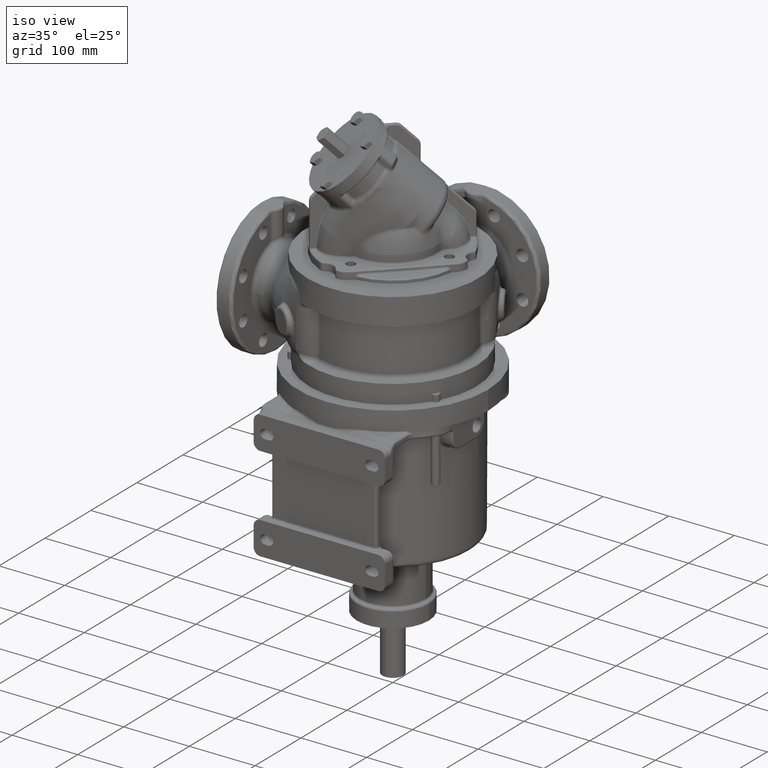
[diagram: clean part render]
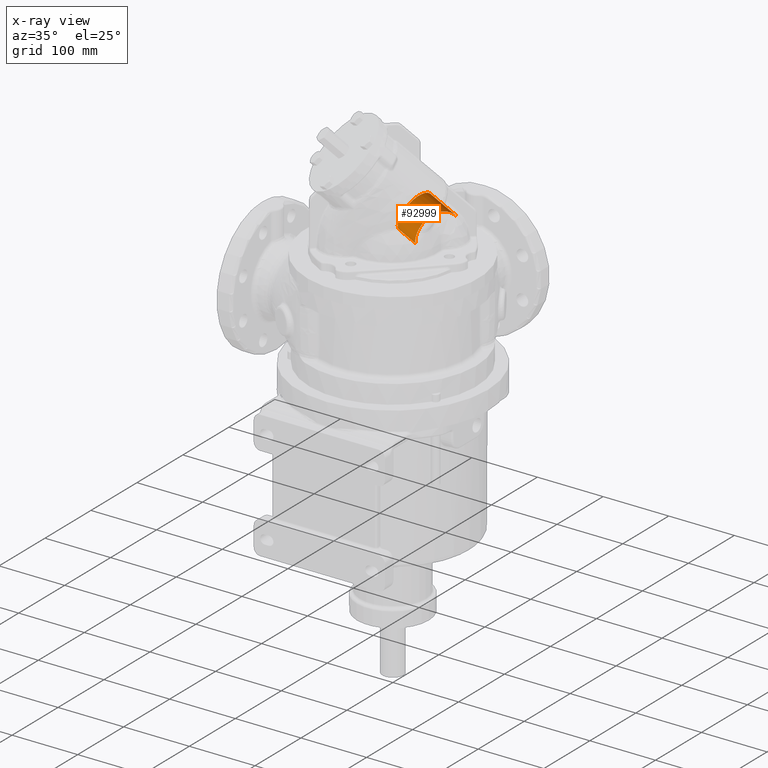
[diagram: x-ray — body ghosted, one internal face saturated and labeled with its STEP entity id]
A machine part, iso view, then the same camera in x-ray: the body is ghosted and one INTERNAL B-rep face — a face not visible from any outside direction — is saturated and labeled: STEP entity #92999.
In plain terms, the highlighted cylindrical surface (edge-blend (fillet) strip) has radius 30 mm, axis along (0.5, 0.5, -0.7071).
Its self-contained STEP definition (entity closure, byte-faithful):
#67401=CARTESIAN_POINT('',(1.973097038856E1,1.973097038856E1,2.325226009489E2));
#67402=DIRECTION('',(-5.E-1,-5.E-1,7.071067811865E-1));
#67403=DIRECTION('',(5.E-1,5.E-1,7.071067811865E-1));
#67404=AXIS2_PLACEMENT_3D('',#67401,#67402,#67403);
#67406=DIRECTION('',(5.000000001009E-1,4.999999999631E-1,-7.071067811413E-1));
#67407=VECTOR('',#67406,4.449999999716E1);
#67408=CARTESIAN_POINT('',(3.473097038550E1,3.473097039163E1,2.537358043805E2));
#67409=LINE('',#67408,#67407);
#67410=DIRECTION('',(4.999999202704E-1,5.000000796394E-1,-7.071067812504E-1));
#67411=VECTOR('',#67410,3.151352581217E1);
#67412=CARTESIAN_POINT('',(4.730970394474E0,4.730970388341E0,2.113093975133E2));
#67413=LINE('',#67412,#67411);
#67423=CARTESIAN_POINT('',(4.198097038856E1,4.198097038856E1,2.010563491861E2));
#67424=DIRECTION('',(-5.E-1,-5.E-1,7.071067811865E-1));
#67425=DIRECTION('',(5.E-1,5.E-1,7.071067811865E-1));
#67426=AXIS2_PLACEMENT_3D('',#67423,#67424,#67425);
#67725=CARTESIAN_POINT('',(1.264026299926E1,5.479481184275E1,2.079474010132E2));
#67726=CARTESIAN_POINT('',(1.253398625388E1,5.464767147354E1,2.077673693371E2));
#67727=CARTESIAN_POINT('',(1.232634143761E1,5.434909539676E1,2.074077267919E2));
#67728=CARTESIAN_POINT('',(1.202993784760E1,5.388877690027E1,2.068700487142E2));
#67729=CARTESIAN_POINT('',(1.174893737093E1,5.341652546810E1,2.063347072774E2));
#67730=CARTESIAN_POINT('',(1.148349472447E1,5.293264287784E1,2.058020523784E2));
#67731=CARTESIAN_POINT('',(1.123361183514E1,5.243711974833E1,2.052721008496E2));
#67732=CARTESIAN_POINT('',(1.099960688491E1,5.193056087211E1,2.047455181239E2));
#67733=CARTESIAN_POINT('',(1.078165567077E1,5.141339894020E1,2.042227348556E2));
#67734=CARTESIAN_POINT('',(1.057973768289E1,5.088556525829E1,2.037036760206E2));
#67735=CARTESIAN_POINT('',(1.039411666390E1,5.034768039740E1,2.031889388823E2));
#67736=CARTESIAN_POINT('',(1.022496409577E1,4.980030318154E1,2.026790361055E2));
#67737=CARTESIAN_POINT('',(1.007223341170E1,4.924330706725E1,2.021738789440E2));
#67738=CARTESIAN_POINT('',(9.936102984689E0,4.867727317920E1,2.016740181587E2));
#67739=CARTESIAN_POINT('',(9.816710758868E0,4.810285625584E1,2.011800172861E2));
#67740=CARTESIAN_POINT('',(9.714037756737E0,4.751996014513E1,2.006917779148E2));
#67741=CARTESIAN_POINT('',(9.628207690626E0,4.692911727037E1,2.002097381553E2));
#67742=CARTESIAN_POINT('',(9.559329235080E0,4.633107066261E1,1.997344541294E2));
#67743=CARTESIAN_POINT('',(9.507382152030E0,4.572578671049E1,1.992659146983E2));
#67744=CARTESIAN_POINT('',(9.472412959020E0,4.511367047578E1,1.988044649568E2));
#67745=CARTESIAN_POINT('',(9.454455622940E0,4.449548522722E1,1.983506804850E2));
#67746=CARTESIAN_POINT('',(9.453504410059E0,4.387135818221E1,1.979046404806E2));
#67747=CARTESIAN_POINT('',(9.469581636545E0,4.324155605098E1,1.974665317661E2));
#67748=CARTESIAN_POINT('',(9.502685010270E0,4.260687299158E1,1.970368733886E2));
#67749=CARTESIAN_POINT('',(9.552782981758E0,4.196764391707E1,1.966158765982E2));
#67750=CARTESIAN_POINT('',(9.619867181787E0,4.132392001588E1,1.962036104226E2));
#67751=CARTESIAN_POINT('',(9.703859604355E0,4.067649335379E1,1.958005977197E2));
#67752=CARTESIAN_POINT('',(9.804675778742E0,4.002587051578E1,1.954071407619E2));
#67753=CARTESIAN_POINT('',(9.922336921439E0,3.937198561148E1,1.950231949581E2));
#67754=CARTESIAN_POINT('',(1.005673179332E1,3.871563274113E1,1.946492086842E2));
#67755=CARTESIAN_POINT('',(1.020770663999E1,3.805745536924E1,1.942855397188E2));
#67756=CARTESIAN_POINT('',(1.037527959250E1,3.739730302043E1,1.939321346542E2));
#67757=CARTESIAN_POINT('',(1.055928106947E1,3.673588744709E1,1.935893982572E2));
#67758=CARTESIAN_POINT('',(1.075948410662E1,3.607395306367E1,1.932577080630E2));
#67759=CARTESIAN_POINT('',(1.097592897091E1,3.541138257192E1,1.929369922453E2));
#67760=CARTESIAN_POINT('',(1.120843640475E1,3.474879259980E1,1.926275579731E2));
#67761=CARTESIAN_POINT('',(1.145669388915E1,3.408696868790E1,1.923297953203E2));
#67762=CARTESIAN_POINT('',(1.172070338338E1,3.342585700845E1,1.920436912372E2));
#67763=CARTESIAN_POINT('',(1.200028432886E1,3.276593618089E1,1.917694751693E2));
#67764=CARTESIAN_POINT('',(1.229508379454E1,3.210803365961E1,1.915074779521E2));
#67765=CARTESIAN_POINT('',(1.260504171115E1,3.145222938847E1,1.912577412546E2));
#67766=CARTESIAN_POINT('',(1.293000538146E1,3.079882758671E1,1.910204208334E2));
#67767=CARTESIAN_POINT('',(1.326956497145E1,3.014862448836E1,1.907958217884E2));
#67768=CARTESIAN_POINT('',(1.362354300270E1,2.950192495436E1,1.905840418820E2));
#67769=CARTESIAN_POINT('',(1.399189035137E1,2.885881767452E1,1.903851299464E2));
#67770=CARTESIAN_POINT('',(1.437413986731E1,2.822008615047E1,1.901993632472E2));
#67771=CARTESIAN_POINT('',(1.476997785384E1,2.758619786244E1,1.900268799788E2));
#67772=CARTESIAN_POINT('',(1.517944427346E1,2.695709191015E1,1.898676721102E2));
#67773=CARTESIAN_POINT('',(1.560205200208E1,2.633351478025E1,1.897219558409E2));
#67774=CARTESIAN_POINT('',(1.603735537443E1,2.571606680971E1,1.895898745185E2));
#67775=CARTESIAN_POINT('',(1.648544748762E1,2.510461015506E1,1.894714041136E2));
#67776=CARTESIAN_POINT('',(1.694585842971E1,2.449980746924E1,1.893666909284E2));
#67777=CARTESIAN_POINT('',(1.741803923338E1,2.390233802177E1,1.892758510672E2));
#67778=CARTESIAN_POINT('',(1.790207160599E1,2.331209441567E1,1.891988643496E2));
#67779=CARTESIAN_POINT('',(1.839754426285E1,2.272961012792E1,1.891358112121E2));
#67780=CARTESIAN_POINT('',(1.890384351065E1,2.215558836608E1,1.890867599102E2));
#67781=CARTESIAN_POINT('',(1.942096738354E1,2.159003586763E1,1.890516939908E2));
#67782=CARTESIAN_POINT('',(1.994860558108E1,2.103331916044E1,1.890306459765E2));
#67783=CARTESIAN_POINT('',(2.030695062324E1,2.066851311537E1,1.890259717282E2));
#67784=CARTESIAN_POINT('',(2.048773078800E1,2.048773580415E1,1.890259697104E2));
#67811=CARTESIAN_POINT('',(2.158431865944E1,6.108834220158E1,2.174416021683E2));
#67812=CARTESIAN_POINT('',(2.152996047761E1,6.106594198666E1,2.174142899917E2));
#67813=CARTESIAN_POINT('',(2.141540633250E1,6.101909871387E1,2.173540567471E2));
#67814=CARTESIAN_POINT('',(2.122786146658E1,6.094308299297E1,2.172471855049E2));
#67815=CARTESIAN_POINT('',(2.102068647870E1,6.085927765475E1,2.171207767120E2));
#67816=CARTESIAN_POINT('',(2.079184162278E1,6.076628064011E1,2.169724405519E2));
#67817=CARTESIAN_POINT('',(2.053858774102E1,6.066220170150E1,2.167990583903E2));
#67818=CARTESIAN_POINT('',(2.025917318096E1,6.054529148498E1,2.165978620231E2));
#67819=CARTESIAN_POINT('',(1.995072972469E1,6.041299805450E1,2.163649737522E2));
#67820=CARTESIAN_POINT('',(1.961063615484E1,6.026240637924E1,2.160962284549E2));
#67821=CARTESIAN_POINT('',(1.923420946766E1,6.008912085191E1,2.157853301150E2));
#67822=CARTESIAN_POINT('',(1.881138520669E1,5.988502646517E1,2.154200880589E2));
#67823=CARTESIAN_POINT('',(1.835127717475E1,5.965007334324E1,2.150039636259E2));
#67824=CARTESIAN_POINT('',(1.786988880940E1,5.938810328461E1,2.145480347380E2));
#67825=CARTESIAN_POINT('',(1.739471834966E1,5.911160655969E1,2.140774363988E2));
#67826=CARTESIAN_POINT('',(1.693128556225E1,5.882331247347E1,2.135986900217E2));
#67827=CARTESIAN_POINT('',(1.647597509017E1,5.852033382519E1,2.131086127025E2));
#67828=CARTESIAN_POINT('',(1.603146059710E1,5.820371340170E1,2.126103174456E2));
#67829=CARTESIAN_POINT('',(1.559939955164E1,5.787427896584E1,2.121060585471E2));
#67830=CARTESIAN_POINT('',(1.518020070930E1,5.753209937529E1,2.115966741493E2));
#67831=CARTESIAN_POINT('',(1.477421749249E1,5.717725473367E1,2.110829030774E2));
#67832=CARTESIAN_POINT('',(1.438189774642E1,5.680997087725E1,2.105655289049E2));
#67833=CARTESIAN_POINT('',(1.400374987107E1,5.643062537818E1,2.100454311671E2));
#67834=CARTESIAN_POINT('',(1.363990177614E1,5.603926774308E1,2.095229590171E2));
#67835=CARTESIAN_POINT('',(1.329085059124E1,5.563638688422E1,2.089989377335E2));
#67836=CARTESIAN_POINT('',(1.295662296161E1,5.522197867854E1,2.084735096049E2));
#67837=CARTESIAN_POINT('',(1.274402035760E1,5.493842420465E1,2.081228422467E2));
#67838=CARTESIAN_POINT('',(1.264026299926E1,5.479481184275E1,2.079474010132E2));
#67840=CARTESIAN_POINT('',(2.215642554425E1,6.133541927506E1,2.176677759382E2));
#67841=CARTESIAN_POINT('',(2.213456238058E1,6.132514036512E1,2.176626237941E2));
#67842=CARTESIAN_POINT('',(2.208778854993E1,6.130353679549E1,2.176502285044E2));
#67843=CARTESIAN_POINT('',(2.200895582209E1,6.126814743904E1,2.176254052282E2));
#67844=CARTESIAN_POINT('',(2.192025601108E1,6.122937412125E1,2.175931925136E2));
#67845=CARTESIAN_POINT('',(2.182096357709E1,6.118691475367E1,2.175528124497E2));
#67846=CARTESIAN_POINT('',(2.171016095109E1,6.114037743039E1,2.175033091588E2));
#67847=CARTESIAN_POINT('',(2.162762039863E1,6.110618790321E1,2.174633535585E2));
#67848=CARTESIAN_POINT('',(2.158431865944E1,6.108834220158E1,2.174416021683E2));
#67855=CARTESIAN_POINT('',(2.215642554425E1,6.133541927506E1,2.176677759382E2));
#67856=CARTESIAN_POINT('',(2.239270548348E1,6.144648045684E1,2.177235348088E2));
#67857=CARTESIAN_POINT('',(2.286604152246E1,6.166285852194E1,2.178346300237E2));
#67858=CARTESIAN_POINT('',(2.357816059378E1,6.197046900432E1,2.179994274090E2));
#67859=CARTESIAN_POINT('',(2.429169954687E1,6.226094532534E1,2.181624722557E2));
#67860=CARTESIAN_POINT('',(2.500645916288E1,6.253443951687E1,2.183236498301E2));
#67861=CARTESIAN_POINT('',(2.572219966254E1,6.279104830252E1,2.184829099572E2));
#67862=CARTESIAN_POINT('',(2.619959719093E1,6.295083517022E1,2.185877297835E2));
#67863=CARTESIAN_POINT('',(2.643828516363E1,6.302792398081E1,2.186397723581E2));
#67957=CARTESIAN_POINT('',(4.385367749483E1,6.578791636698E1,2.192146060208E2));
#67958=CARTESIAN_POINT('',(4.390438985184E1,6.575375662529E1,2.192541621159E2));
#67959=CARTESIAN_POINT('',(4.399885355484E1,6.568791340966E1,2.193299340069E2));
#67960=CARTESIAN_POINT('',(4.411964732205E1,6.559787892856E1,2.194326899338E2));
#67961=CARTESIAN_POINT('',(4.422249839893E1,6.551568098885E1,2.195260309378E2));
#67962=CARTESIAN_POINT('',(4.430933479673E1,6.544096735257E1,2.196106811511E2));
#67963=CARTESIAN_POINT('',(4.438241020993E1,6.537294201450E1,2.196877654827E2));
#67964=CARTESIAN_POINT('',(4.444327804820E1,6.531123098103E1,2.197578514758E2));
#67965=CARTESIAN_POINT('',(4.449328552304E1,6.525559959892E1,2.198212867645E2));
#67966=CARTESIAN_POINT('',(4.453402831310E1,6.520542163889E1,2.198788178395E2));
#67967=CARTESIAN_POINT('',(4.456686726364E1,6.516013593706E1,2.199310884921E2));
#67968=CARTESIAN_POINT('',(4.459301895846E1,6.511917208098E1,2.199787357169E2));
#67969=CARTESIAN_POINT('',(4.461364325048E1,6.508177402971E1,2.200226073002E2));
#67970=CARTESIAN_POINT('',(4.462971913036E1,6.504702231464E1,2.200637582680E2));
#67971=CARTESIAN_POINT('',(4.464166931789E1,6.501477562854E1,2.201023363359E2));
#67972=CARTESIAN_POINT('',(4.464992958063E1,6.498485729494E1,2.201385237370E2));
#67973=CARTESIAN_POINT('',(4.465491083160E1,6.495691347691E1,2.201727207871E2));
#67974=CARTESIAN_POINT('',(4.465690623353E1,6.493082154635E1,2.202050510729E2));
#67975=CARTESIAN_POINT('',(4.465618626042E1,6.490631413181E1,2.202358187341E2));
#67976=CARTESIAN_POINT('',(4.465290566614E1,6.488306928689E1,2.202654111311E2));
#67977=CARTESIAN_POINT('',(4.464719077635E1,6.486108375045E1,2.202938193654E2));
#67978=CARTESIAN_POINT('',(4.463917715115E1,6.484029668676E1,2.203211032106E2));
#67979=CARTESIAN_POINT('',(4.462886242355E1,6.482044645537E1,2.203475942595E2));
#67980=CARTESIAN_POINT('',(4.461622072996E1,6.480142991975E1,2.203734287092E2));
#67981=CARTESIAN_POINT('',(4.460122188699E1,6.478319885993E1,2.203986738462E2));
#67982=CARTESIAN_POINT('',(4.458382099847E1,6.476570824914E1,2.204233943799E2));
#67983=CARTESIAN_POINT('',(4.456368101335E1,6.474871811518E1,2.204479458579E2));
#67984=CARTESIAN_POINT('',(4.454053747286E1,6.473219210902E1,2.204724165132E2));
#67985=CARTESIAN_POINT('',(4.451416820375E1,6.471615630826E1,2.204968082283E2));
#67986=CARTESIAN_POINT('',(4.448414814427E1,6.470055147601E1,2.205212612729E2));
#67987=CARTESIAN_POINT('',(4.444976219629E1,6.468527861998E1,2.205460109425E2));
#67988=CARTESIAN_POINT('',(4.441056827553E1,6.467044483395E1,2.205709863730E2));
#67989=CARTESIAN_POINT('',(4.436573881278E1,6.465604465174E1,2.205963159471E2));
#67990=CARTESIAN_POINT('',(4.431369307364E1,6.464198320807E1,2.206223545784E2));
#67991=CARTESIAN_POINT('',(4.425298209393E1,6.462838628009E1,2.206491461867E2));
#67992=CARTESIAN_POINT('',(4.418252961337E1,6.461555857743E1,2.206764322189E2));
#67993=CARTESIAN_POINT('',(4.410219533424E1,6.460392450594E1,2.207036367710E2));
#67994=CARTESIAN_POINT('',(4.401037498407E1,6.459364870640E1,2.207307174518E2));
#67995=CARTESIAN_POINT('',(4.390537042706E1,6.458497924393E1,2.207575023220E2));
#67996=CARTESIAN_POINT('',(4.378589202254E1,6.457821619857E1,2.207836463670E2));
#67997=CARTESIAN_POINT('',(4.364987558862E1,6.457362365280E1,2.208089055497E2));
#67998=CARTESIAN_POINT('',(4.349559582377E1,6.457149585503E1,2.208328698696E2));
#67999=CARTESIAN_POINT('',(4.332122277524E1,6.457209021967E1,2.208551004212E2));
#68000=CARTESIAN_POINT('',(4.312434235005E1,6.457563463822E1,2.208751549345E2));
#68001=CARTESIAN_POINT('',(4.290263769131E1,6.458230972883E1,2.208924896866E2));
#68002=CARTESIAN_POINT('',(4.265320613918E1,6.459223964970E1,2.209065176053E2));
#68003=CARTESIAN_POINT('',(4.237296527563E1,6.460546238687E1,2.209165442080E2));
#68004=CARTESIAN_POINT('',(4.205846025847E1,6.462190014757E1,2.209217686373E2));
#68005=CARTESIAN_POINT('',(4.170575396209E1,6.464132649715E1,2.209212558925E2));
#68006=CARTESIAN_POINT('',(4.131043218245E1,6.466331396873E1,2.209139011734E2));
#68007=CARTESIAN_POINT('',(4.086738455083E1,6.468718119245E1,2.208983918366E2));
#68008=CARTESIAN_POINT('',(4.036994510164E1,6.471194563012E1,2.208730803635E2));
#68009=CARTESIAN_POINT('',(3.981035027492E1,6.473617094939E1,2.208359338536E2));
#68010=CARTESIAN_POINT('',(3.917732673578E1,6.475754051997E1,2.207844928168E2));
#68011=CARTESIAN_POINT('',(3.846145257404E1,6.477275436285E1,2.207161390035E2));
#68012=CARTESIAN_POINT('',(3.763229470928E1,6.477680539227E1,2.206251207858E2));
#68013=CARTESIAN_POINT('',(3.674423958623E1,6.476308021303E1,2.205150164864E2));
#68014=CARTESIAN_POINT('',(3.586679270674E1,6.473061477876E1,2.203948955145E2));
#68015=CARTESIAN_POINT('',(3.499226075900E1,6.467901746761E1,2.202652612450E2));
#68016=CARTESIAN_POINT('',(3.412310625957E1,6.460768430398E1,2.201278640556E2));
#68017=CARTESIAN_POINT('',(3.325740809523E1,6.451621473111E1,2.199834110751E2));
#68018=CARTESIAN_POINT('',(3.239463192939E1,6.440430236909E1,2.198324715345E2));
#68019=CARTESIAN_POINT('',(3.153528022869E1,6.427186248666E1,2.196756537607E2));
#68020=CARTESIAN_POINT('',(3.067940627911E1,6.411864906820E1,2.195137183940E2));
#68021=CARTESIAN_POINT('',(2.982638672264E1,6.394436563821E1,2.193471003777E2));
#68022=CARTESIAN_POINT('',(2.897583426522E1,6.374874747352E1,2.191761521280E2));
#68023=CARTESIAN_POINT('',(2.812741966611E1,6.353153330824E1,2.190011145732E2));
#68024=CARTESIAN_POINT('',(2.728145067705E1,6.329258102178E1,2.188223773201E2));
#68025=CARTESIAN_POINT('',(2.671902712583E1,6.311860125240E1,2.187009689633E2));
#68026=CARTESIAN_POINT('',(2.643828516363E1,6.302792398081E1,2.186397723581E2));
#77322=CARTESIAN_POINT('',(4.730970388563E0,4.730970388563E0,2.113093975133E2));
#77323=CARTESIAN_POINT('',(3.473097038856E1,3.473097038856E1,2.537358043845E2));
#77324=VERTEX_POINT('',#77322);
#77325=VERTEX_POINT('',#77323);
#77330=CARTESIAN_POINT('',(2.048773078800E1,2.048773580415E1,1.890259697104E2));
#77331=VERTEX_POINT('',#77330);
#77532=VERTEX_POINT('',#67725);
#78338=VERTEX_POINT('',#67855);
#78339=VERTEX_POINT('',#67863);
#78341=VERTEX_POINT('',#67811);
#78342=CARTESIAN_POINT('',(5.698097038856E1,5.698097038856E1,2.222695526217E2));
#78344=VERTEX_POINT('',#78342);
#78346=CARTESIAN_POINT('',(4.385367749483E1,6.578791636698E1,2.192146060208E2));
#78347=VERTEX_POINT('',#78346);
#92976=CARTESIAN_POINT('',(-5.394402961144E1,-5.394402961144E1,
3.367147851567E2));
#92977=DIRECTION('',(5.E-1,5.E-1,-7.071067811865E-1));
#92978=DIRECTION('',(5.E-1,5.E-1,7.071067811865E-1));
#92979=AXIS2_PLACEMENT_3D('',#92976,#92977,#92978);
#92980=CYLINDRICAL_SURFACE('',#92979,3.E1);
#92982=ORIENTED_EDGE('',*,*,#92981,.F.);
#92983=ORIENTED_EDGE('',*,*,#92971,.T.);
#92985=ORIENTED_EDGE('',*,*,#92984,.T.);
#92987=ORIENTED_EDGE('',*,*,#92986,.T.);
#92989=ORIENTED_EDGE('',*,*,#92988,.F.);
#92991=ORIENTED_EDGE('',*,*,#92990,.T.);
#92993=ORIENTED_EDGE('',*,*,#92992,.T.);
#92995=ORIENTED_EDGE('',*,*,#92994,.T.);
#92996=ORIENTED_EDGE('',*,*,#92957,.F.);
#92997=EDGE_LOOP('',(#92982,#92983,#92985,#92987,#92989,#92991,#92993,#92995,
#92996));
#92998=FACE_OUTER_BOUND('',#92997,.F.);
#92999=ADVANCED_FACE('',(#92998),#92980,.F.);
#67405=CIRCLE('',#67404,3.E1);
#67427=CIRCLE('',#67426,3.E1);
#67785=B_SPLINE_CURVE_WITH_KNOTS('',3,(#67725,#67726,#67727,#67728,#67729,
#67730,#67731,#67732,#67733,#67734,#67735,#67736,#67737,#67738,#67739,#67740,
#67741,#67742,#67743,#67744,#67745,#67746,#67747,#67748,#67749,#67750,#67751,
#67752,#67753,#67754,#67755,#67756,#67757,#67758,#67759,#67760,#67761,#67762,
#67763,#67764,#67765,#67766,#67767,#67768,#67769,#67770,#67771,#67772,#67773,
#67774,#67775,#67776,#67777,#67778,#67779,#67780,#67781,#67782,#67783,#67784),
.UNSPECIFIED.,.F.,.F.,(4,1,1,1,1,1,1,1,1,1,1,1,1,1,1,1,1,1,1,1,1,1,1,1,1,1,1,1,
1,1,1,1,1,1,1,1,1,1,1,1,1,1,1,1,1,1,1,1,1,1,1,1,1,1,1,1,1,4),(0.E0,
1.754385964912E-2,3.508771929825E-2,5.263157894737E-2,7.017543859649E-2,
8.771929824561E-2,1.052631578947E-1,1.228070175439E-1,1.403508771930E-1,
1.578947368421E-1,1.754385964912E-1,1.929824561404E-1,2.105263157895E-1,
2.280701754386E-1,2.456140350877E-1,2.631578947368E-1,2.807017543860E-1,
2.982456140351E-1,3.157894736842E-1,3.333333333333E-1,3.508771929825E-1,
3.684210526316E-1,3.859649122807E-1,4.035087719298E-1,4.210526315789E-1,
4.385964912281E-1,4.561403508772E-1,4.736842105263E-1,4.912280701754E-1,
5.087719298246E-1,5.263157894737E-1,5.438596491228E-1,5.614035087719E-1,
5.789473684211E-1,5.964912280702E-1,6.140350877193E-1,6.315789473684E-1,
6.491228070175E-1,6.666666666667E-1,6.842105263158E-1,7.017543859649E-1,
7.192982456140E-1,7.368421052632E-1,7.543859649123E-1,7.719298245614E-1,
7.894736842105E-1,8.070175438596E-1,8.245614035088E-1,8.421052631579E-1,
8.596491228070E-1,8.771929824561E-1,8.947368421053E-1,9.122807017544E-1,
9.298245614035E-1,9.473684210526E-1,9.649122807018E-1,9.824561403509E-1,1.E0),
.UNSPECIFIED.);
#67839=B_SPLINE_CURVE_WITH_KNOTS('',3,(#67811,#67812,#67813,#67814,#67815,
#67816,#67817,#67818,#67819,#67820,#67821,#67822,#67823,#67824,#67825,#67826,
#67827,#67828,#67829,#67830,#67831,#67832,#67833,#67834,#67835,#67836,#67837,
#67838),.UNSPECIFIED.,.F.,.F.,(4,1,1,1,1,1,1,1,1,1,1,1,1,1,1,1,1,1,1,1,1,1,1,1,
1,4),(0.E0,4.E-2,8.E-2,1.2E-1,1.6E-1,2.E-1,2.4E-1,2.8E-1,3.2E-1,3.6E-1,4.E-1,
4.4E-1,4.8E-1,5.2E-1,5.6E-1,6.E-1,6.4E-1,6.8E-1,7.2E-1,7.6E-1,8.E-1,8.4E-1,
8.8E-1,9.2E-1,9.6E-1,1.E0),.UNSPECIFIED.);
#67849=B_SPLINE_CURVE_WITH_KNOTS('',3,(#67840,#67841,#67842,#67843,#67844,
#67845,#67846,#67847,#67848),.UNSPECIFIED.,.F.,.F.,(4,1,1,1,1,1,4),(0.E0,
1.666666666667E-1,3.333333333333E-1,5.E-1,6.666666666667E-1,8.333333333333E-1,
1.E0),.UNSPECIFIED.);
#67864=B_SPLINE_CURVE_WITH_KNOTS('',3,(#67855,#67856,#67857,#67858,#67859,
#67860,#67861,#67862,#67863),.UNSPECIFIED.,.F.,.F.,(4,1,1,1,1,1,4),(0.E0,
1.666666666667E-1,3.333333333333E-1,5.E-1,6.666666666667E-1,8.333333333333E-1,
1.E0),.UNSPECIFIED.);
#68027=B_SPLINE_CURVE_WITH_KNOTS('',3,(#67957,#67958,#67959,#67960,#67961,
#67962,#67963,#67964,#67965,#67966,#67967,#67968,#67969,#67970,#67971,#67972,
#67973,#67974,#67975,#67976,#67977,#67978,#67979,#67980,#67981,#67982,#67983,
#67984,#67985,#67986,#67987,#67988,#67989,#67990,#67991,#67992,#67993,#67994,
#67995,#67996,#67997,#67998,#67999,#68000,#68001,#68002,#68003,#68004,#68005,
#68006,#68007,#68008,#68009,#68010,#68011,#68012,#68013,#68014,#68015,#68016,
#68017,#68018,#68019,#68020,#68021,#68022,#68023,#68024,#68025,#68026),
.UNSPECIFIED.,.F.,.F.,(4,1,1,1,1,1,1,1,1,1,1,1,1,1,1,1,1,1,1,1,1,1,1,1,1,1,1,1,
1,1,1,1,1,1,1,1,1,1,1,1,1,1,1,1,1,1,1,1,1,1,1,1,1,1,1,1,1,1,1,1,1,1,1,1,1,1,1,
4),(0.E0,1.492537313433E-2,2.985074626866E-2,4.477611940299E-2,
5.970149253731E-2,7.462686567164E-2,8.955223880597E-2,1.044776119403E-1,
1.194029850746E-1,1.343283582090E-1,1.492537313433E-1,1.641791044776E-1,
1.791044776119E-1,1.940298507463E-1,2.089552238806E-1,2.238805970149E-1,
2.388059701493E-1,2.537313432836E-1,2.686567164179E-1,2.835820895522E-1,
2.985074626866E-1,3.134328358209E-1,3.283582089552E-1,3.432835820896E-1,
3.582089552239E-1,3.731343283582E-1,3.880597014925E-1,4.029850746269E-1,
4.179104477612E-1,4.328358208955E-1,4.477611940299E-1,4.626865671642E-1,
4.776119402985E-1,4.925373134328E-1,5.074626865672E-1,5.223880597015E-1,
5.373134328358E-1,5.522388059701E-1,5.671641791045E-1,5.820895522388E-1,
5.970149253731E-1,6.119402985075E-1,6.268656716418E-1,6.417910447761E-1,
6.567164179104E-1,6.716417910448E-1,6.865671641791E-1,7.014925373134E-1,
7.164179104478E-1,7.313432835821E-1,7.462686567164E-1,7.611940298507E-1,
7.761194029851E-1,7.910447761194E-1,8.059701492537E-1,8.208955223881E-1,
8.358208955224E-1,8.507462686567E-1,8.656716417910E-1,8.805970149254E-1,
8.955223880597E-1,9.104477611940E-1,9.253731343284E-1,9.402985074627E-1,
9.552238805970E-1,9.701492537313E-1,9.850746268657E-1,1.E0),.UNSPECIFIED.);
#92957=EDGE_CURVE('',#77324,#77331,#67413,.T.);
#92971=EDGE_CURVE('',#77325,#78344,#67409,.T.);
#92981=EDGE_CURVE('',#77325,#77324,#67405,.T.);
#92984=EDGE_CURVE('',#78344,#78347,#67427,.T.);
#92986=EDGE_CURVE('',#78347,#78339,#68027,.T.);
#92988=EDGE_CURVE('',#78338,#78339,#67864,.T.);
#92990=EDGE_CURVE('',#78338,#78341,#67849,.T.);
#92992=EDGE_CURVE('',#78341,#77532,#67839,.T.);
#92994=EDGE_CURVE('',#77532,#77331,#67785,.T.);